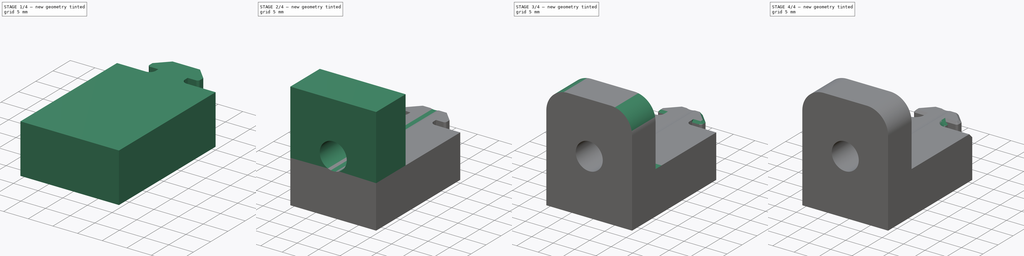
[diagram: build sequence overview — one tinted view per stage of 4, left to right]
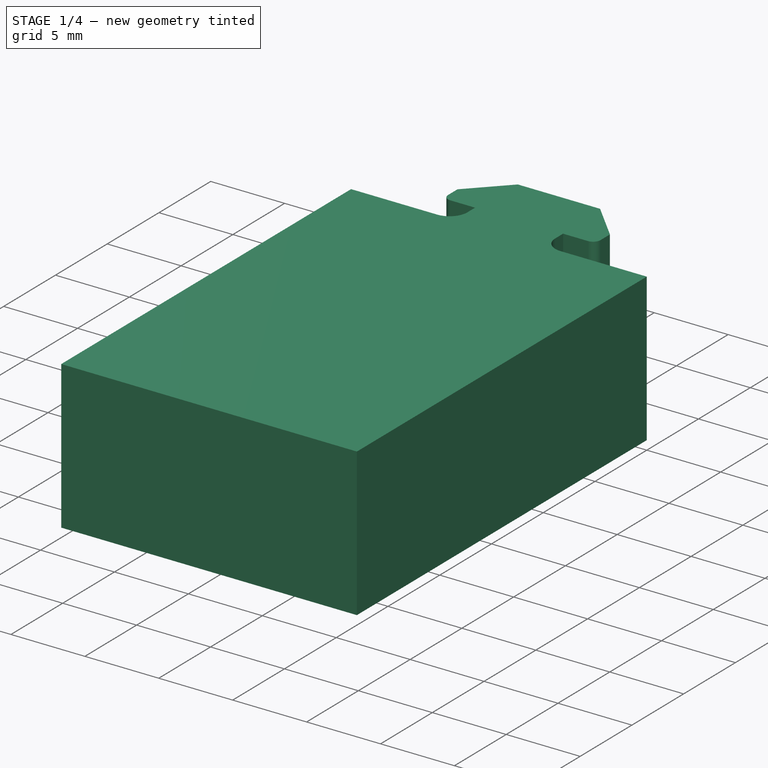
[diagram: stage 1 of 4 — iso view after this stage's code; geometry added in this stage tinted green]
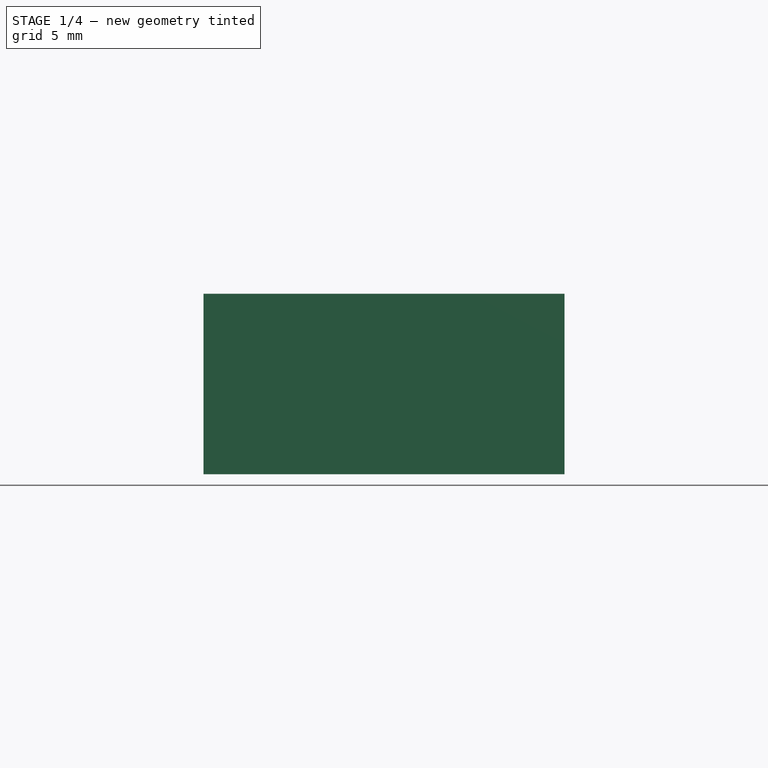
[diagram: stage 1 of 4 — front view after this stage's code; geometry added in this stage tinted green]
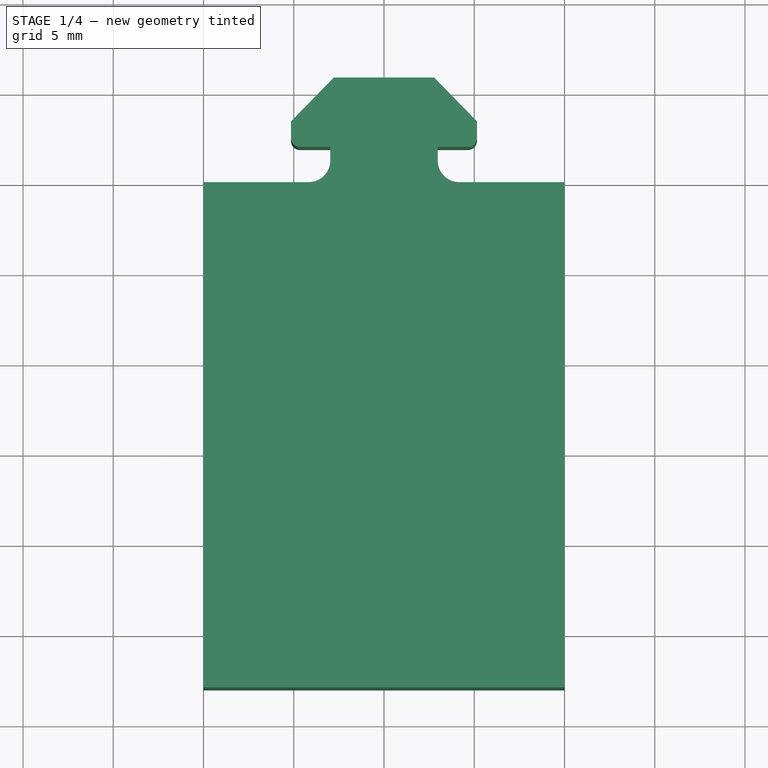
[diagram: stage 1 of 4 — top view after this stage's code; geometry added in this stage tinted green]
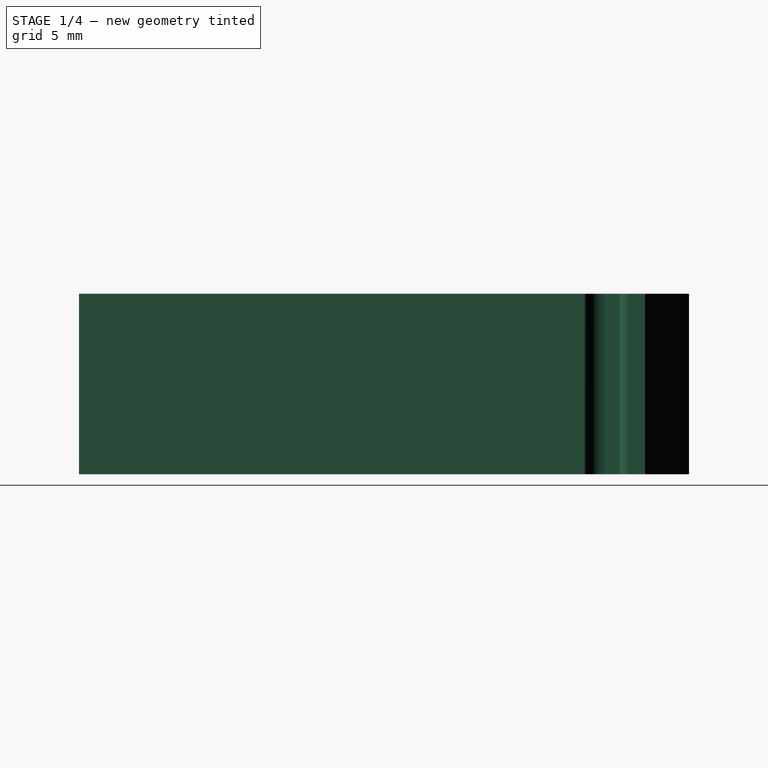
[diagram: stage 1 of 4 — right view after this stage's code; geometry added in this stage tinted green]
FCSTD DOCUMENT  (FreeCAD 0.20R29177 (Git))
Label: AT_004a_Vslotprofil_Clamp
License: All rights reserved
LicenseURL: http://en.wikipedia.org/wiki/All_rights_reserved
objects: PartDesign::Chamfer×4, Sketcher::SketchObject×3, PartDesign::Pad×2, PartDesign::SubShapeBinder×1, PartDesign::Mirrored×1, PartDesign::Pocket×1, PartDesign::Fillet×1, PartDesign::Body×1
note: 22 computed .brp shape members not serialized (recipe doc carries the construction recipe); baked Part::Feature solids carry a one-line shape summary decoded from their .brp

FEATURE [PartDesign::SubShapeBinder] Binder
  BindCopyOnChange = 0
  BindMode = 2
  ClaimChildren = false
  Context = -> Body [Binder.]
  Fuse = false
  MakeFace = true
  OffsetFill = false
  OffsetIntersection = false
  OffsetJoinType = 0
  OffsetOpenResult = false
  PartialLoad = false
  Relative = true
  _Version = 2
FEATURE [Sketcher::SketchObject] Sketch
  ExternalGeometry = -> [Binder]
  FullyConstrained = false
  MapMode = 5
  Placement = pos=(0,0,364) rot=(0,0,1;0rad)
  Support = -> [Binder]
  sketch-geometry (14):
    g0: LineSegment StartX=-2.975 StartY=-8.8 StartZ=0 EndX=-2.975 EndY=-8.05 EndZ=0
    g1: LineSegment StartX=-2.975 StartY=-8.05 StartZ=0 EndX=-4.65527 EndY=-8.05 EndZ=0
    g2: LineSegment StartX=-5.15527 StartY=-7.55 StartZ=0 EndX=-5.15527 EndY=-6.63671 EndZ=0
    g3: LineSegment StartX=-5.15527 StartY=-6.63671 StartZ=0 EndX=-2.78152 EndY=-4.2 EndZ=0
    g4: LineSegment StartX=-2.78152 StartY=-4.2 StartZ=0 EndX=0 EndY=-4.2 EndZ=0
    g5: LineSegment StartX=0 StartY=-4.2 StartZ=0 EndX=0 EndY=-10 EndZ=0
    g6: ArcOfCircle CenterX=-4.65527 CenterY=-7.55 CenterZ=0 NormalX=0 NormalY=0 NormalZ=1 AngleXU=0 Radius=0.5 StartAngle=3.14159 EndAngle=4.71239
    g7: GeomPoint X=-5.15527 Y=-8.05 Z=0
    g8: LineSegment StartX=-4.175 StartY=-10 StartZ=0 EndX=-10 EndY=-10 EndZ=0
    g9: LineSegment StartX=-10 StartY=-10 StartZ=0 EndX=-10 EndY=-38 EndZ=0
    g10: LineSegment StartX=-10 StartY=-38 StartZ=0 EndX=0 EndY=-38 EndZ=0
    g11: LineSegment StartX=0 StartY=-38 StartZ=0 EndX=0 EndY=-10 EndZ=0
    g12: ArcOfCircle CenterX=-4.175 CenterY=-8.8 CenterZ=0 NormalX=0 NormalY=0 NormalZ=1 AngleXU=0 Radius=1.2 StartAngle=4.71239 EndAngle=6.28319
    g13: GeomPoint X=-2.975 Y=-10 Z=0
  constraints (36):
    c: Vertical(g0)
    c: Coincident(g0,g1)
    c: Horizontal(g1)
    c: Vertical(g2)
    c: Coincident(g2,g3)
    c: Coincident(g3,g4)
    c: PointOnObject(g4,g-2)
    c: Horizontal(g4)
    c: Coincident(g4,g5)
    c: PointOnObject(g5,g-2)
    c: DistanceY(g4,g-5) = 0.3
    c: Distance(g-12,g3) = 0.3
    c: DistanceY(g-17,g7) = 0.15
    c: Distance(g-17,g0) = 0.15
    c: PointOnObject(g7,g1)
    c: PointOnObject(g7,g2)
    c: Tangent(g1,g6) = 1.5708
    c: Tangent(g2,g6) = 1.5708
    c: Radius(g6) = 0.5
    c: Horizontal(g-16,g13)
    c: Horizontal(g13,g5)
    c: Horizontal(g8)
    c: Coincident(g8,g9)
    c: Vertical(g9)
    c: Coincident(g9,g10)
    c: PointOnObject(g10,g-2)
    c: Coincident(g10,g11)
    c: Coincident(g11,g5)
    c: Vertical(g8,g-18)
    c: DistanceY(g9,g9) = 28
    c: Horizontal(g10)
    c: PointOnObject(g13,g8)
    c: PointOnObject(g13,g0)
    c: Tangent(g8,g12) = 1.5708
    c: Tangent(g0,g12) = -1.5708
    c: Radius(g12) = 1.2
FEATURE [PartDesign::Pad] Pad
  Direction = (0,0,1)
  Length = 10
  Length2 = 10
  Profile = -> Sketch
  ReferenceAxis = -> Sketch [N_Axis]
  Type = 0
FEATURE [PartDesign::Mirrored] Mirrored
  BaseFeature = -> Pad
  MirrorPlane = -> Sketch [V_Axis]
  Originals = -> [Pad]
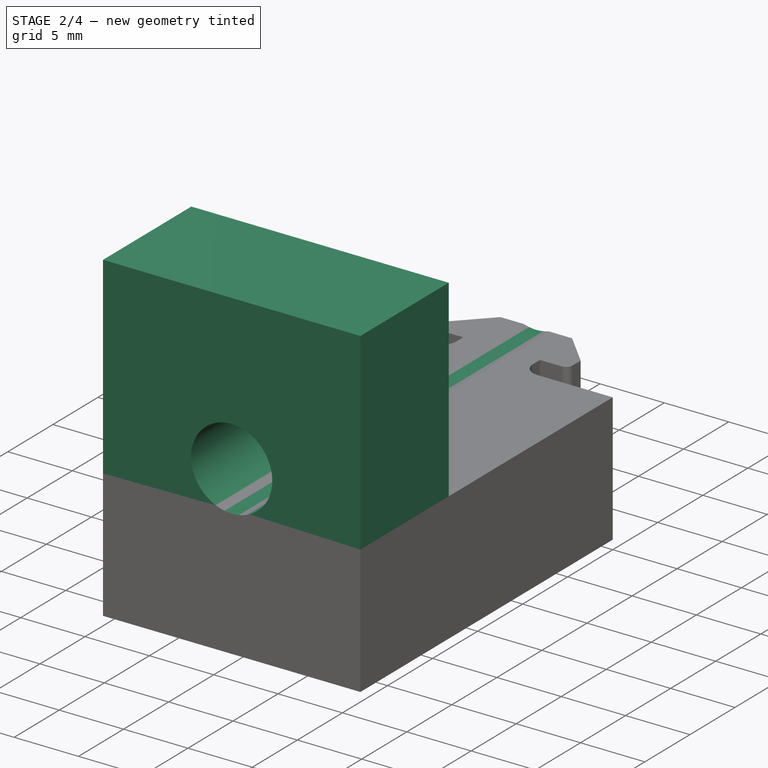
[diagram: stage 2 of 4 — iso view after this stage's code; geometry added in this stage tinted green]
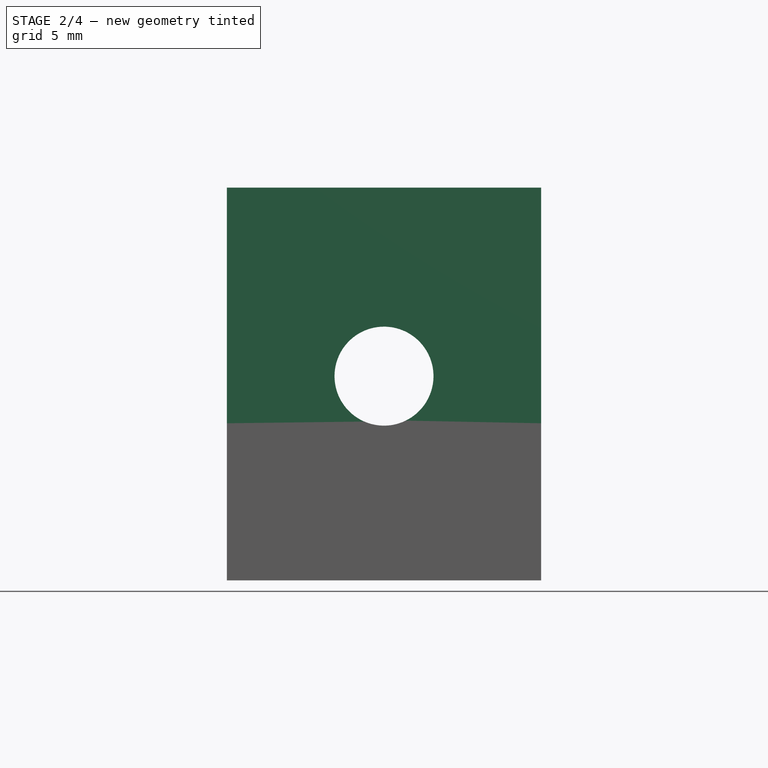
[diagram: stage 2 of 4 — front view after this stage's code; geometry added in this stage tinted green]
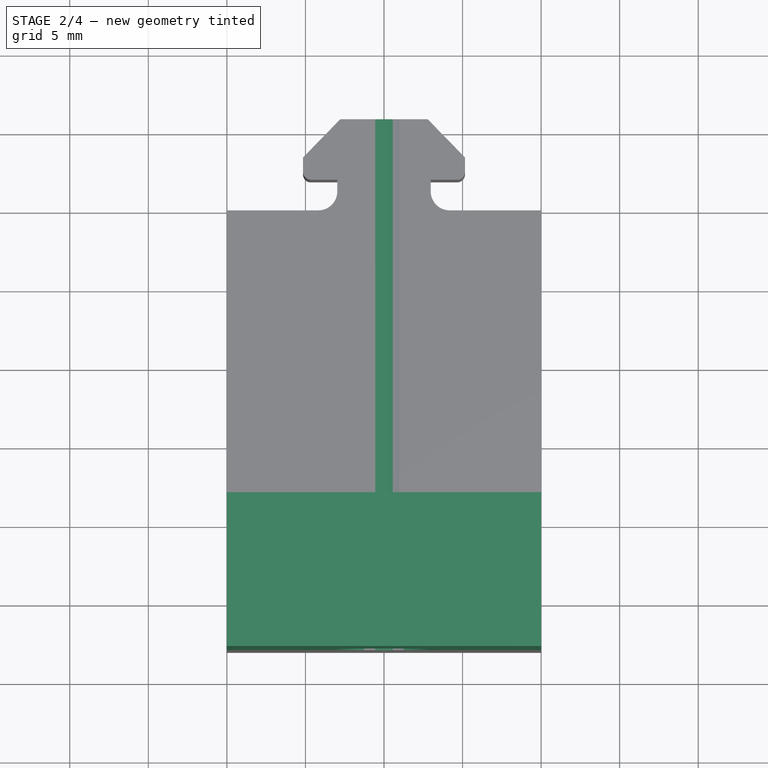
[diagram: stage 2 of 4 — top view after this stage's code; geometry added in this stage tinted green]
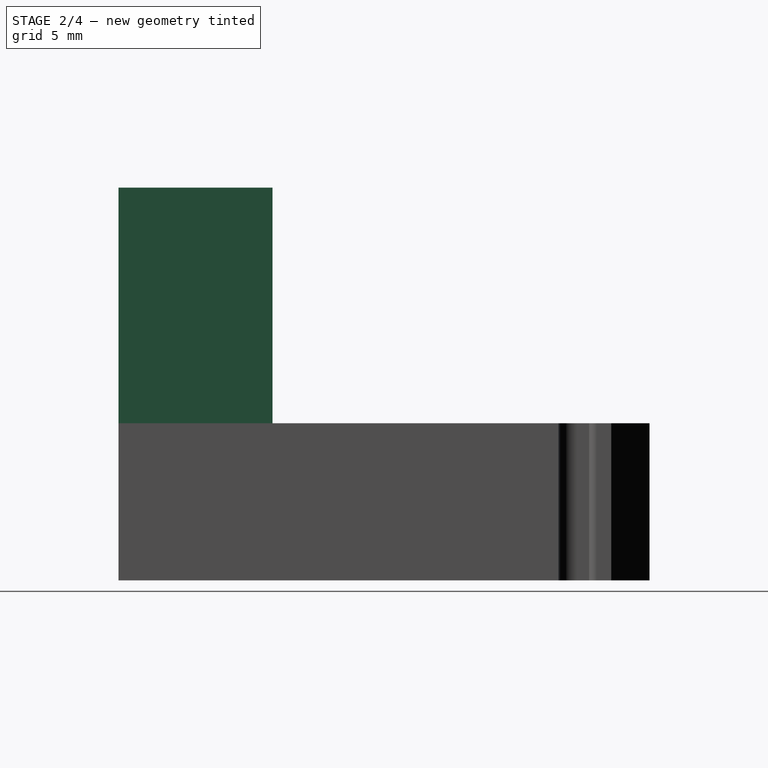
[diagram: stage 2 of 4 — right view after this stage's code; geometry added in this stage tinted green]
FEATURE [Sketcher::SketchObject] Sketch001
  ExternalGeometry = -> [Mirrored]
  FullyConstrained = true
  MapMode = 5
  Placement = pos=(0,0,374) rot=(0,0,1;0rad)
  Support = -> [Mirrored]
  sketch-geometry (4):
    g0: LineSegment StartX=-10 StartY=-38 StartZ=0 EndX=10 EndY=-38 EndZ=0
    g1: LineSegment StartX=10 StartY=-38 StartZ=0 EndX=10 EndY=-28.2 EndZ=0
    g2: LineSegment StartX=10 StartY=-28.2 StartZ=0 EndX=-10 EndY=-28.2 EndZ=0
    g3: LineSegment StartX=-10 StartY=-28.2 StartZ=0 EndX=-10 EndY=-38 EndZ=0
  constraints (11):
    c: Coincident(g0,g1)
    c: Coincident(g1,g2)
    c: Coincident(g2,g3)
    c: Coincident(g3,g0)
    c: Horizontal(g0)
    c: Horizontal(g2)
    c: Vertical(g1)
    c: Vertical(g3)
    c: Coincident(g0,g-3)
    c: Vertical(g1,g-5)
    c: DistanceY(g2,g-4) = 18.2
FEATURE [PartDesign::Pad] Pad001
  BaseFeature = -> Mirrored
  Direction = (0,0,1)
  Length = 15
  Length2 = 10
  Profile = -> Sketch001
  ReferenceAxis = -> Sketch001 [N_Axis]
  Type = 0
FEATURE [Sketcher::SketchObject] Sketch002
  ExternalGeometry = -> [Pad001]
  FullyConstrained = true
  MapMode = 5
  Placement = pos=(0,-38,0) rot=(1,0,0;1.5708rad)
  Support = -> [Pad001]
  sketch-geometry (1):
    g0: Circle CenterX=0 CenterY=377 CenterZ=0 NormalX=0 NormalY=0 NormalZ=1 AngleXU=0 Radius=3.15
  constraints (3):
    c: Diameter(g0) = 6.3
    c: Vertical(g0,g-3)
    c: DistanceY(g-3,g0) = 3
FEATURE [PartDesign::Pocket] Pocket
  BaseFeature = -> Pad001
  Direction = (0,1,-2e-16)
  Length = 5
  Length2 = 5
  Profile = -> Sketch002
  ReferenceAxis = -> Sketch002 [N_Axis]
  Type = 1
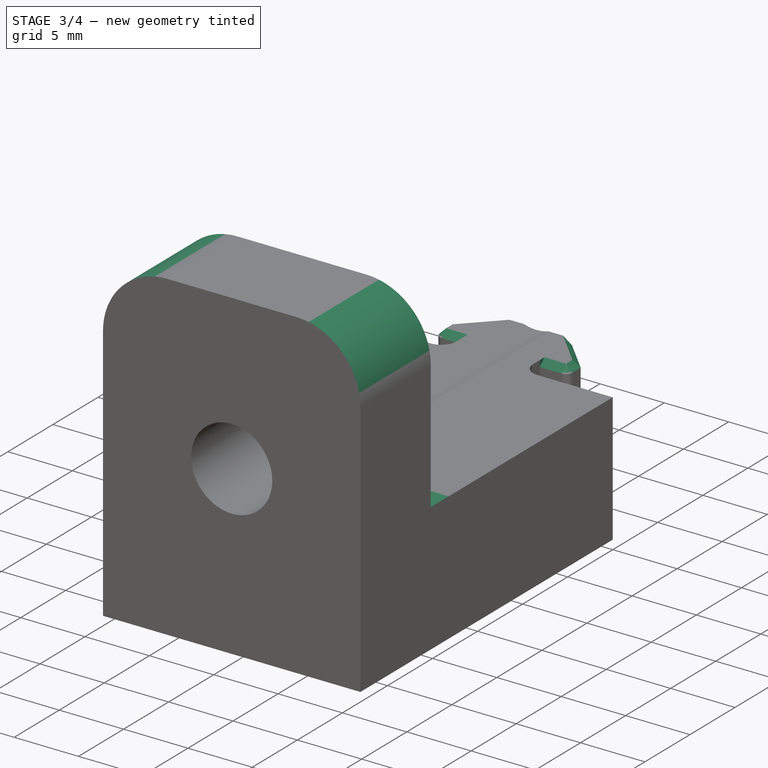
[diagram: stage 3 of 4 — iso view after this stage's code; geometry added in this stage tinted green]
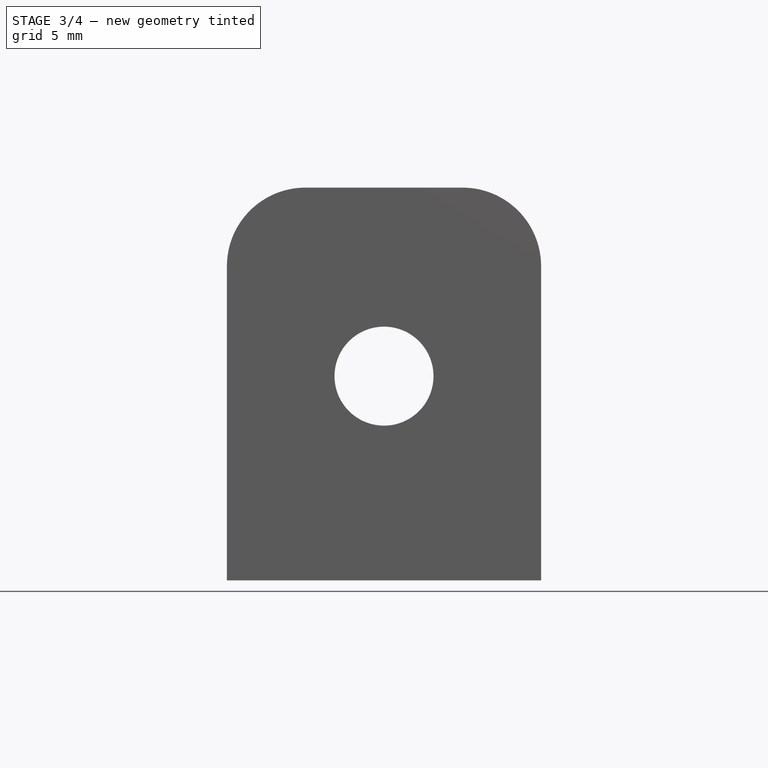
[diagram: stage 3 of 4 — front view after this stage's code; geometry added in this stage tinted green]
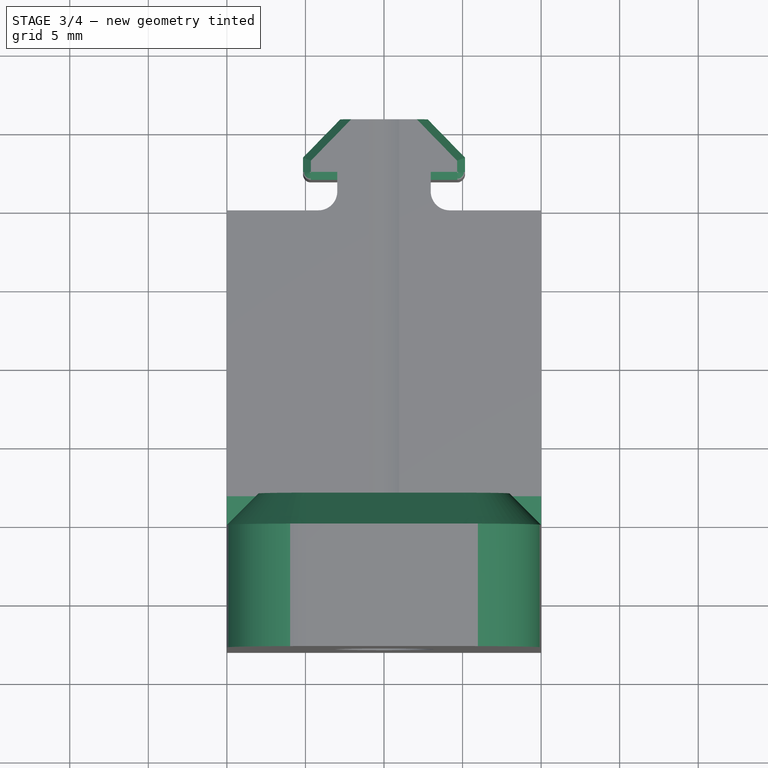
[diagram: stage 3 of 4 — top view after this stage's code; geometry added in this stage tinted green]
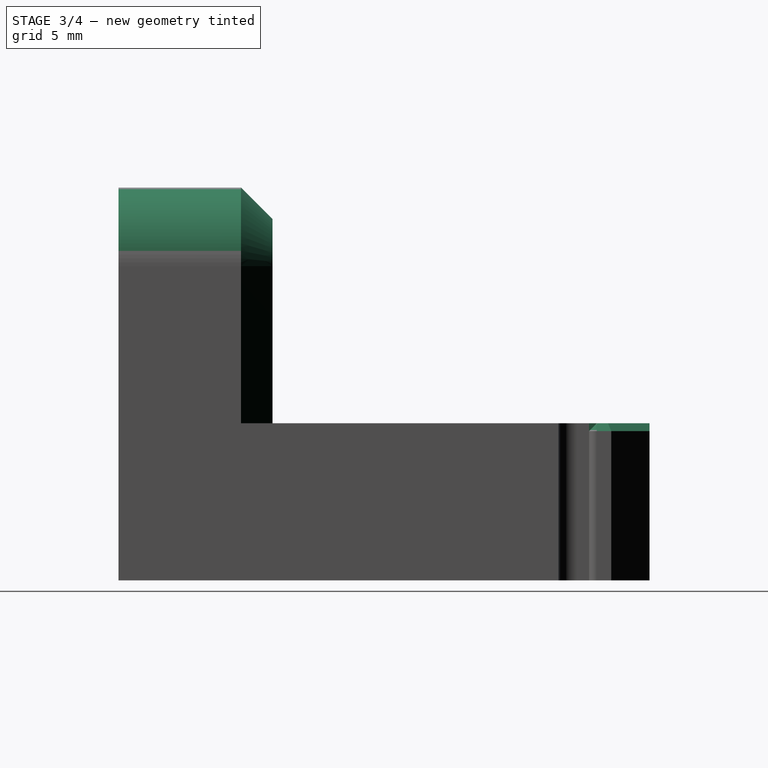
[diagram: stage 3 of 4 — right view after this stage's code; geometry added in this stage tinted green]
FEATURE [PartDesign::Fillet] Fillet
  Base = -> Pocket [Edge85,Edge62]
  BaseFeature = -> Pocket
  Radius = 5
  SupportTransform = false
  UseAllEdges = false
FEATURE [PartDesign::Chamfer] Chamfer
  Angle = 45
  Base = -> Fillet [Edge6]
  BaseFeature = -> Fillet
  ChamferType = 0
  FlipDirection = false
  Size = 2
  Size2 = 1
  SupportTransform = false
  UseAllEdges = false
FEATURE [PartDesign::Chamfer] Chamfer001
  Angle = 45
  Base = -> Chamfer [Edge12,Edge13,Edge37,Edge38]
  BaseFeature = -> Chamfer
  ChamferType = 0
  FlipDirection = false
  Size = 0.5
  Size2 = 1
  SupportTransform = false
  UseAllEdges = false
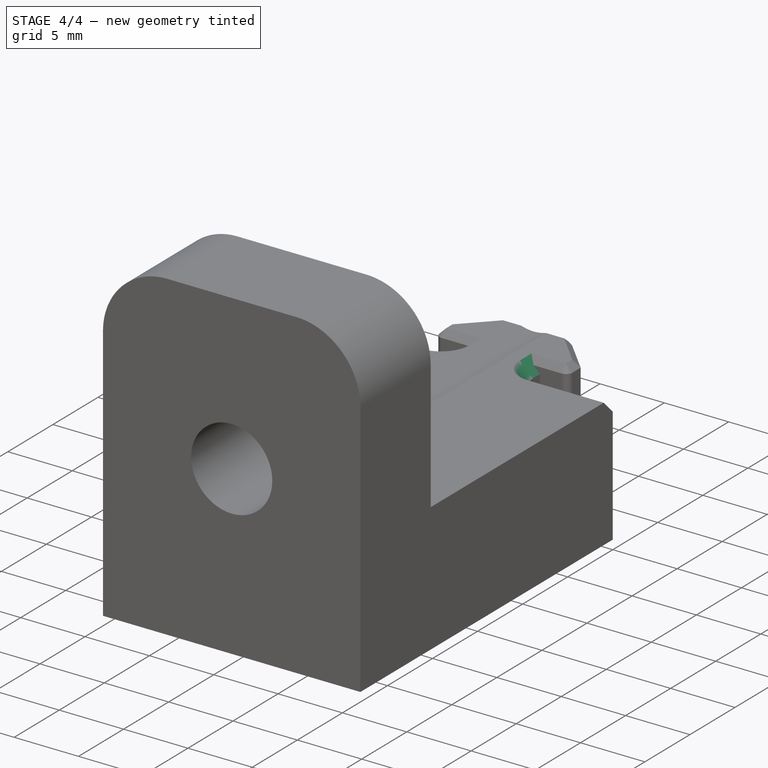
[diagram: stage 4 of 4 — iso view after this stage's code; geometry added in this stage tinted green]
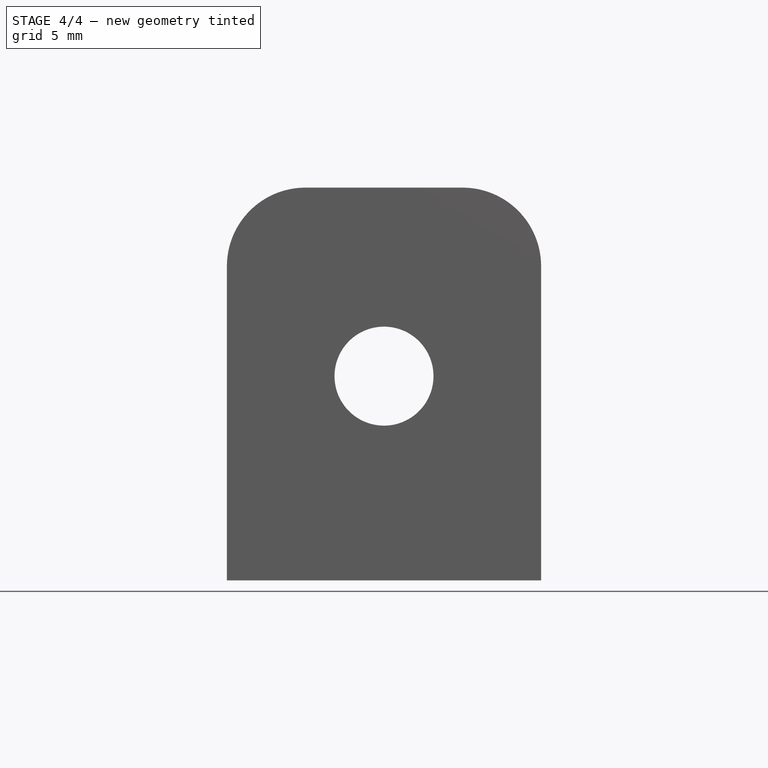
[diagram: stage 4 of 4 — front view after this stage's code; geometry added in this stage tinted green]
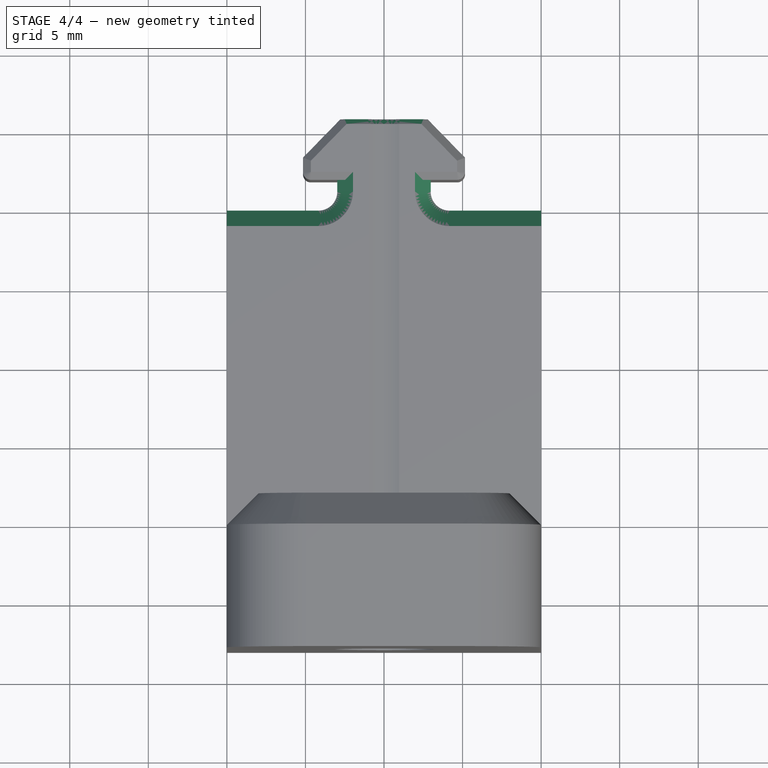
[diagram: stage 4 of 4 — top view after this stage's code; geometry added in this stage tinted green]
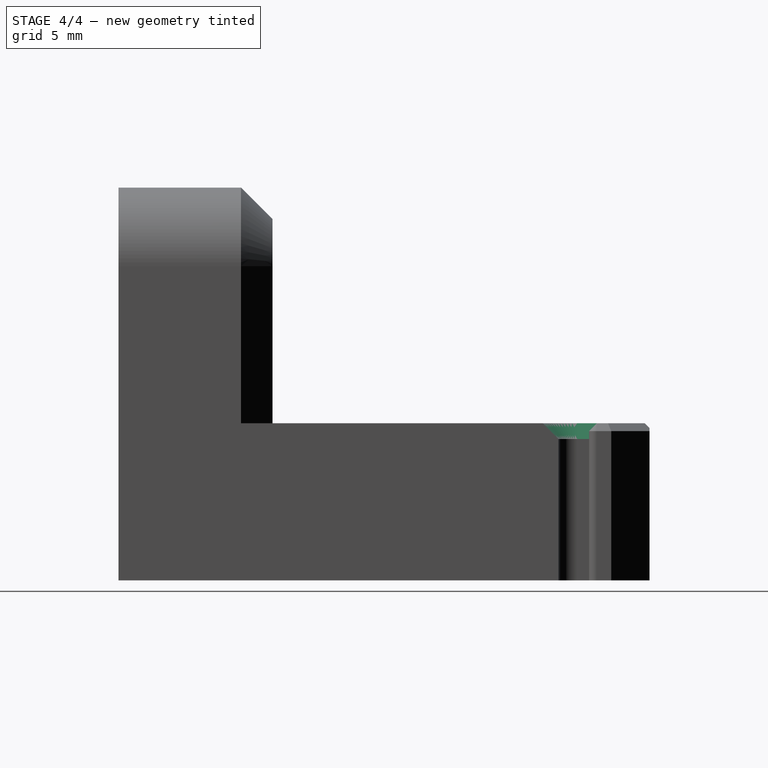
[diagram: stage 4 of 4 — right view after this stage's code; geometry added in this stage tinted green]
FEATURE [PartDesign::Chamfer] Chamfer002
  Angle = 45
  Base = -> Chamfer001 [Edge10,Edge81]
  BaseFeature = -> Chamfer001
  ChamferType = 0
  FlipDirection = false
  Size = 1
  Size2 = 1
  SupportTransform = false
  UseAllEdges = false
FEATURE [PartDesign::Chamfer] Chamfer003
  Angle = 45
  Base = -> Chamfer002 [Edge7,Edge68,Edge28]
  BaseFeature = -> Chamfer002
  ChamferType = 0
  FlipDirection = false
  Size = 0.3
  Size2 = 1
  SupportTransform = false
  UseAllEdges = false
FEATURE [PartDesign::Body] Body
  Group = -> [Binder,Sketch,Pad,Mirrored,Sketch001,Pad001,Sketch002,Pocket,Fillet,Chamfer,Chamfer001,Chamfer002,Chamfer003]
  Origin = -> Origin
  Tip = -> Chamfer003
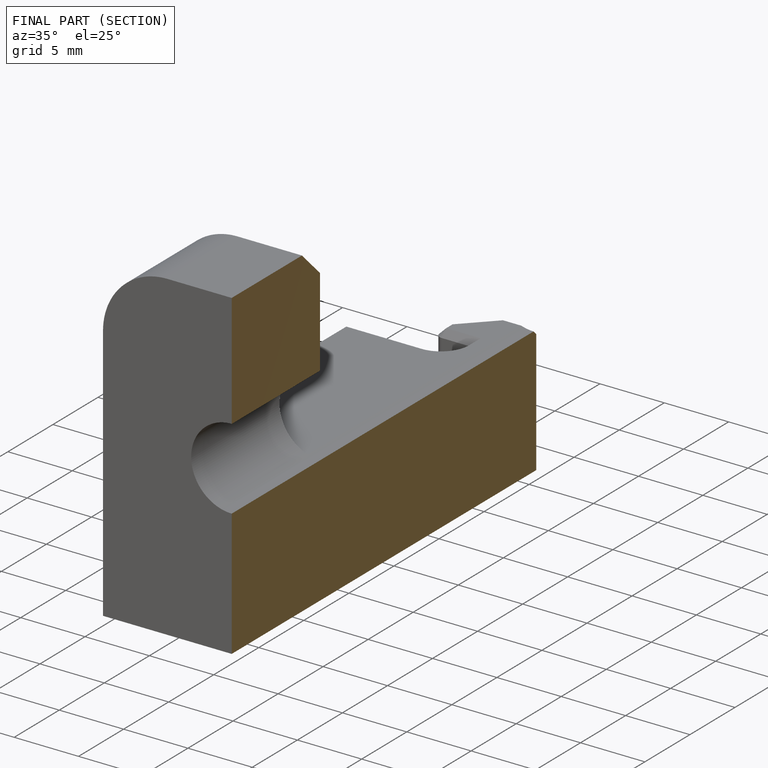
[diagram: finished part — half-section view (interior)]
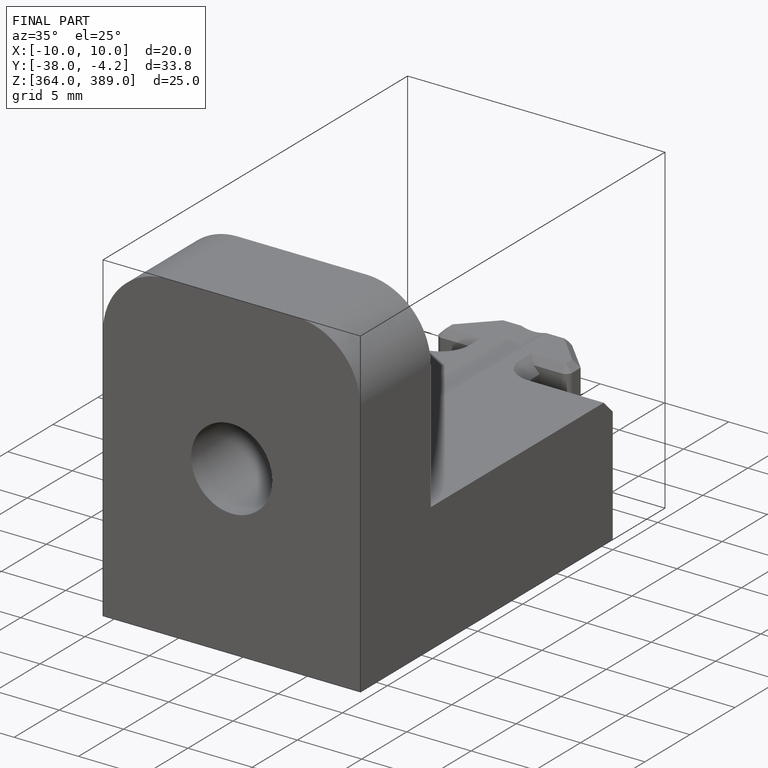
[diagram: finished part — iso view with bounding-box wireframe]
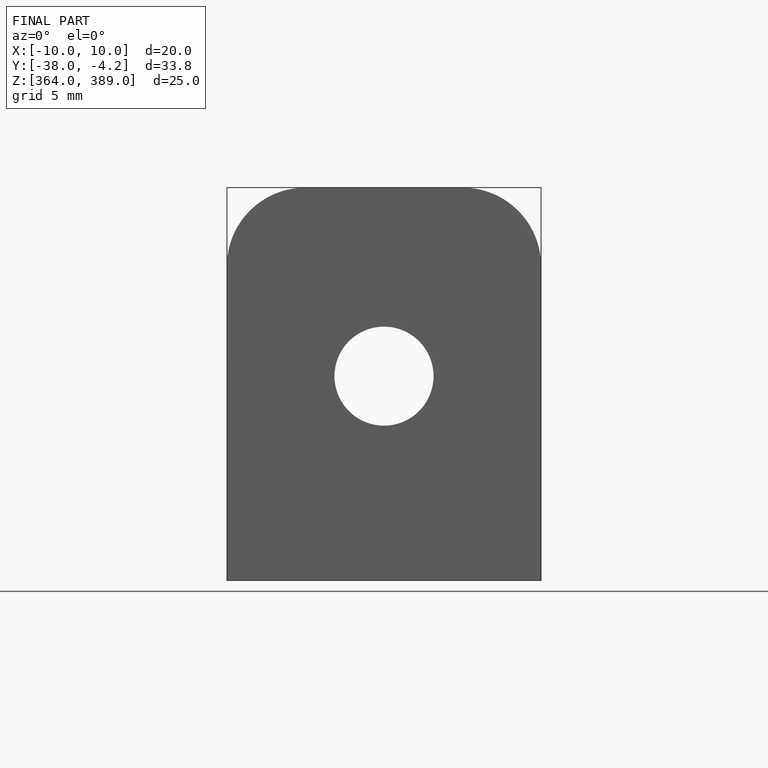
[diagram: finished part — front view with bounding-box wireframe]
